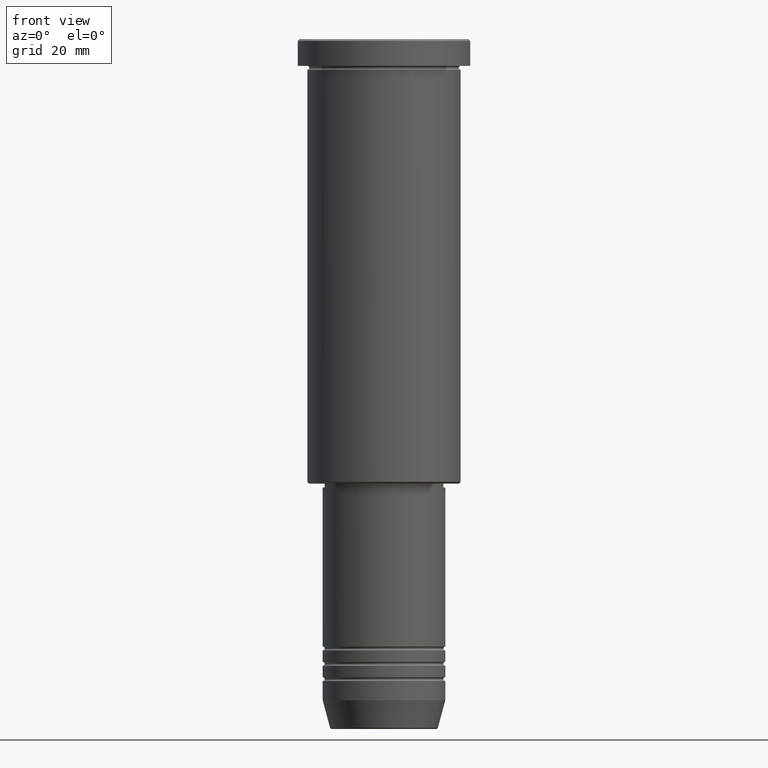
[diagram: clean part render]
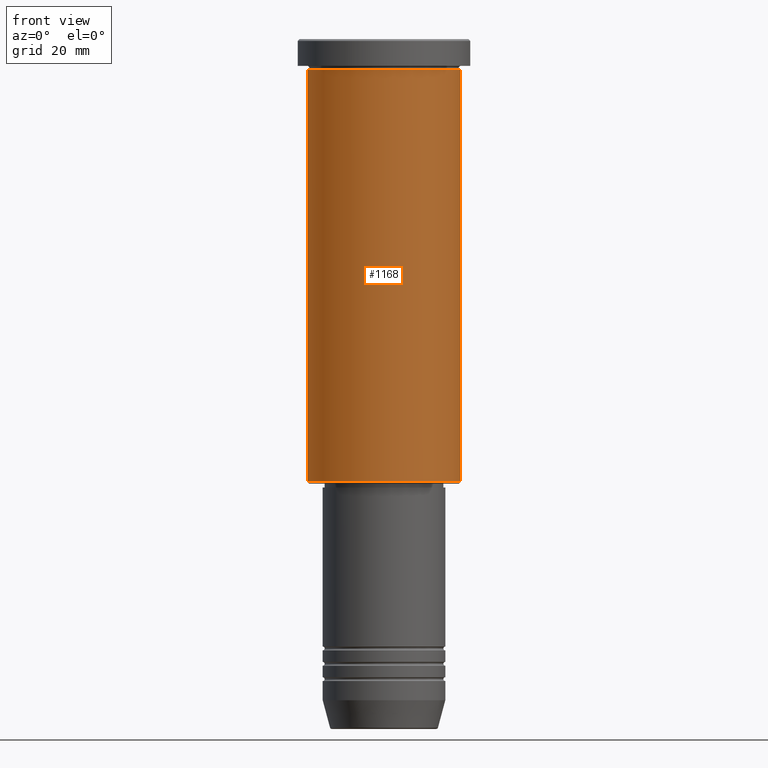
[diagram: same view with one face highlighted and labeled with its STEP entity id]
A machine part, front view. The second image highlights one B-rep face of the part: STEP entity #1168.
In plain terms, the highlighted cylindrical surface (partial cylindrical patch) has radius 20 mm, axis along (-0, -0, 1).
Its self-contained STEP definition (entity closure, byte-faithful):
#1 = LINE ( 'NONE', #353, #578 ) ;
#80 = CARTESIAN_POINT ( 'NONE',  ( 0.000000000000000000, 0.000000000000000000, -7.999999999999994671 ) ) ;
#113 = ORIENTED_EDGE ( 'NONE', *, *, #782, .T. ) ;
#136 = ORIENTED_EDGE ( 'NONE', *, *, #1145, .T. ) ;
#147 = CIRCLE ( 'NONE', #577, 20.00000000000000355 ) ;
#159 = DIRECTION ( 'NONE',  ( 1.000000000000000000, 0.000000000000000000, 0.000000000000000000 ) ) ;
#195 = VERTEX_POINT ( 'NONE', #898 ) ;
#209 = CARTESIAN_POINT ( 'NONE',  ( 0.000000000000000000, 0.000000000000000000, -115.5000000000000142 ) ) ;
#214 = ORIENTED_EDGE ( 'NONE', *, *, #543, .F. ) ;
#263 = DIRECTION ( 'NONE',  ( 1.000000000000000000, 0.000000000000000000, 0.000000000000000000 ) ) ;
#264 = CARTESIAN_POINT ( 'NONE',  ( -20.00000000000000355, 2.449293598294706907E-15, -115.5000000000000142 ) ) ;
#273 = LINE ( 'NONE', #432, #951 ) ;
#346 = CYLINDRICAL_SURFACE ( 'NONE', #932, 20.00000000000000355 ) ;
#353 = CARTESIAN_POINT ( 'NONE',  ( -20.00000000000000355, 2.449293598294706907E-15, 0.000000000000000000 ) ) ;
#432 = CARTESIAN_POINT ( 'NONE',  ( 20.00000000000000355, 0.000000000000000000, 0.000000000000000000 ) ) ;
#462 = VERTEX_POINT ( 'NONE', #710 ) ;
#467 = DIRECTION ( 'NONE',  ( -1.000000000000000000, 0.000000000000000000, 0.000000000000000000 ) ) ;
#475 = CARTESIAN_POINT ( 'NONE',  ( -20.00000000000000000, 2.449293598294706513E-15, -7.999999999999994671 ) ) ;
#514 = ORIENTED_EDGE ( 'NONE', *, *, #1137, .F. ) ;
#527 = DIRECTION ( 'NONE',  ( -0.000000000000000000, -0.000000000000000000, 1.000000000000000000 ) ) ;
#543 = EDGE_CURVE ( 'NONE', #861, #195, #574, .T. ) ;
#574 = CIRCLE ( 'NONE', #633, 20.00000000000000000 ) ;
#577 = AXIS2_PLACEMENT_3D ( 'NONE', #209, #1025, #467 ) ;
#578 = VECTOR ( 'NONE', #714, 1000.000000000000000 ) ;
#633 = AXIS2_PLACEMENT_3D ( 'NONE', #80, #966, #159 ) ;
#636 = FACE_OUTER_BOUND ( 'NONE', #713, .T. ) ;
#651 = VERTEX_POINT ( 'NONE', #264 ) ;
#710 = CARTESIAN_POINT ( 'NONE',  ( 20.00000000000000355, 0.000000000000000000, -115.5000000000000142 ) ) ;
#713 = EDGE_LOOP ( 'NONE', ( #514, #113, #136, #214 ) ) ;
#714 = DIRECTION ( 'NONE',  ( -0.000000000000000000, -0.000000000000000000, 1.000000000000000000 ) ) ;
#782 = EDGE_CURVE ( 'NONE', #651, #462, #147, .T. ) ;
#861 = VERTEX_POINT ( 'NONE', #475 ) ;
#898 = CARTESIAN_POINT ( 'NONE',  ( 20.00000000000000000, 0.000000000000000000, -7.999999999999994671 ) ) ;
#932 = AXIS2_PLACEMENT_3D ( 'NONE', #1016, #1089, #263 ) ;
#951 = VECTOR ( 'NONE', #527, 1000.000000000000000 ) ;
#966 = DIRECTION ( 'NONE',  ( -0.000000000000000000, -0.000000000000000000, 1.000000000000000000 ) ) ;
#1016 = CARTESIAN_POINT ( 'NONE',  ( 0.000000000000000000, 0.000000000000000000, 0.000000000000000000 ) ) ;
#1025 = DIRECTION ( 'NONE',  ( -0.000000000000000000, -0.000000000000000000, 1.000000000000000000 ) ) ;
#1089 = DIRECTION ( 'NONE',  ( -0.000000000000000000, -0.000000000000000000, 1.000000000000000000 ) ) ;
#1137 = EDGE_CURVE ( 'NONE', #651, #861, #1, .T. ) ;
#1145 = EDGE_CURVE ( 'NONE', #462, #195, #273, .T. ) ;
#1168 = ADVANCED_FACE ( 'NONE', ( #636 ), #346, .T. ) ;